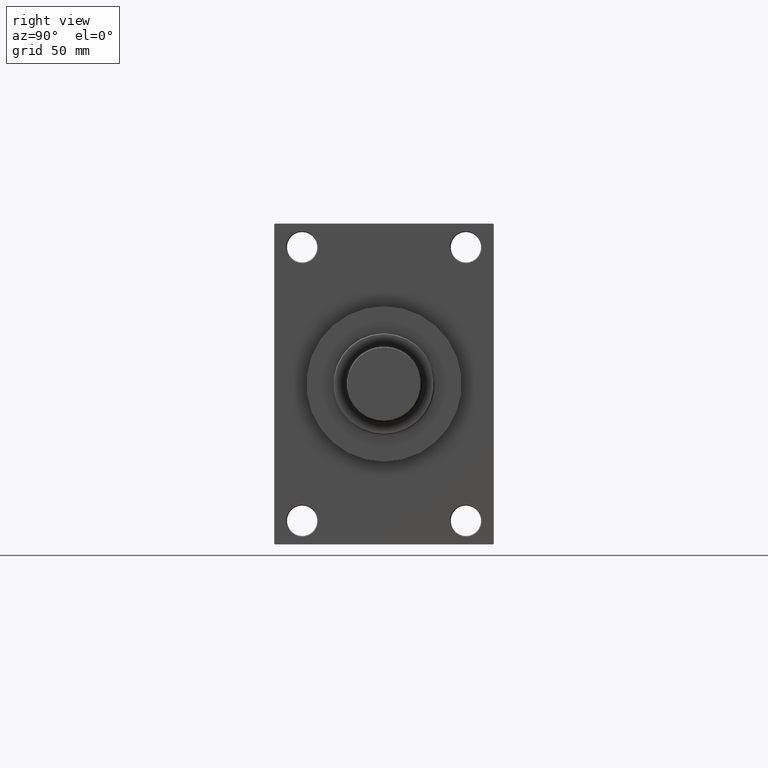
[diagram: clean part render]
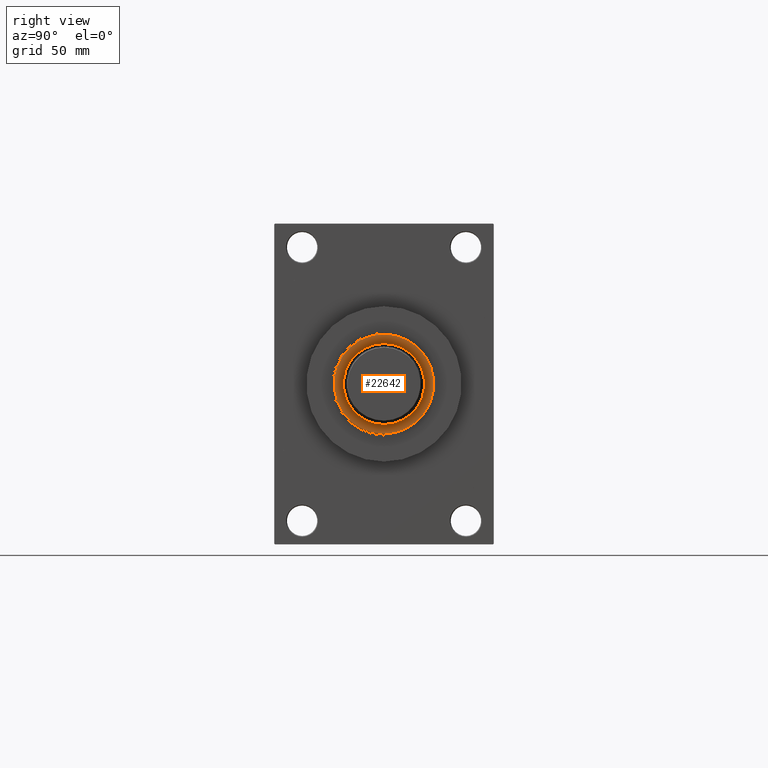
[diagram: same view with one face highlighted and labeled with its STEP entity id]
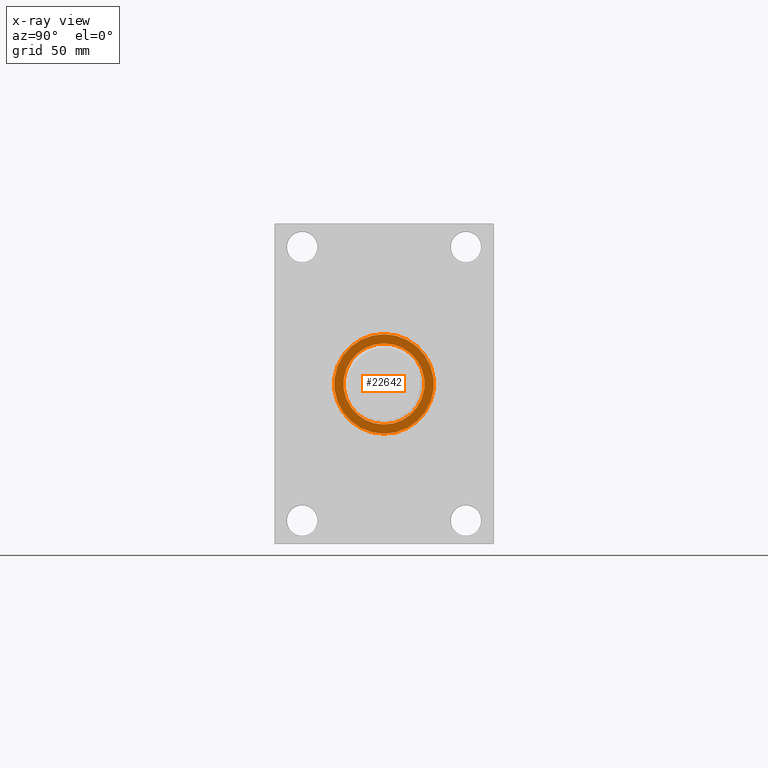
[diagram: x-ray of the same camera — body ghosted, the highlighted face saturated]
A machine part, right view. The second image highlights one B-rep face of the part: STEP entity #22642.
The next image is the same camera in x-ray: the body ghosted, the highlighted face saturated — about 0% of this face is hidden behind the body in this view.
In plain terms, the highlighted planar face has unit normal (1, 0, 0).
Its self-contained STEP definition (entity closure, byte-faithful):
#1291 = CARTESIAN_POINT ( 'NONE',  ( 0.000000000000000000, 0.000000000000000000, 52.25999999999999801 ) ) ;
#1650 = DIRECTION ( 'NONE',  ( 1.000000000000000000, 0.000000000000000000, -0.000000000000000000 ) ) ;
#3320 = AXIS2_PLACEMENT_3D ( 'NONE', #20366, #17201, #1650 ) ;
#7037 = DIRECTION ( 'NONE',  ( 1.000000000000000000, 0.000000000000000000, 0.000000000000000000 ) ) ;
#7342 = EDGE_LOOP ( 'NONE', ( #22119, #34394 ) ) ;
#9273 = DIRECTION ( 'NONE',  ( 0.000000000000000000, 0.000000000000000000, 1.000000000000000000 ) ) ;
#10120 = CARTESIAN_POINT ( 'NONE',  ( 24.00000000000000355, 0.000000000000000000, 52.25999999999999801 ) ) ;
#12003 = DIRECTION ( 'NONE',  ( 1.000000000000000000, 0.000000000000000000, 0.000000000000000000 ) ) ;
#12494 = DIRECTION ( 'NONE',  ( 0.000000000000000000, 0.000000000000000000, 1.000000000000000000 ) ) ;
#13114 = CARTESIAN_POINT ( 'NONE',  ( 0.000000000000000000, 0.000000000000000000, 52.25999999999999801 ) ) ;
#13301 = PLANE ( 'NONE',  #3320 ) ;
#14037 = CIRCLE ( 'NONE', #34259, 29.50000000000000000 ) ;
#15141 = CARTESIAN_POINT ( 'NONE',  ( -29.50000000000000000, 0.000000000000000000, 52.25999999999999801 ) ) ;
#15408 = CARTESIAN_POINT ( 'NONE',  ( 0.000000000000000000, 0.000000000000000000, 52.25999999999999801 ) ) ;
#15996 = VERTEX_POINT ( 'NONE', #15141 ) ;
#17201 = DIRECTION ( 'NONE',  ( 0.000000000000000000, 0.000000000000000000, 1.000000000000000000 ) ) ;
#17439 = FACE_OUTER_BOUND ( 'NONE', #40092, .T. ) ;
#17582 = CIRCLE ( 'NONE', #33127, 29.50000000000000000 ) ;
#18924 = EDGE_CURVE ( 'NONE', #15996, #46663, #14037, .T. ) ;
#20005 = DIRECTION ( 'NONE',  ( 1.000000000000000000, 0.000000000000000000, 0.000000000000000000 ) ) ;
#20366 = CARTESIAN_POINT ( 'NONE',  ( 0.000000000000000000, 0.000000000000000000, 52.25999999999999801 ) ) ;
#21249 = AXIS2_PLACEMENT_3D ( 'NONE', #15408, #12494, #12003 ) ;
#22119 = ORIENTED_EDGE ( 'NONE', *, *, #31052, .F. ) ;
#22642 = ADVANCED_FACE ( 'NONE', ( #31315, #17439 ), #13301, .T. ) ;
#23878 = CARTESIAN_POINT ( 'NONE',  ( 0.000000000000000000, 0.000000000000000000, 52.25999999999999801 ) ) ;
#24120 = DIRECTION ( 'NONE',  ( 1.000000000000000000, 0.000000000000000000, 0.000000000000000000 ) ) ;
#25834 = EDGE_CURVE ( 'NONE', #35136, #33893, #46128, .T. ) ;
#28949 = ORIENTED_EDGE ( 'NONE', *, *, #37195, .T. ) ;
#31052 = EDGE_CURVE ( 'NONE', #33893, #35136, #31465, .T. ) ;
#31315 = FACE_BOUND ( 'NONE', #7342, .T. ) ;
#31465 = CIRCLE ( 'NONE', #37687, 24.00000000000000355 ) ;
#32744 = ORIENTED_EDGE ( 'NONE', *, *, #18924, .T. ) ;
#33127 = AXIS2_PLACEMENT_3D ( 'NONE', #1291, #34611, #20005 ) ;
#33893 = VERTEX_POINT ( 'NONE', #10120 ) ;
#34259 = AXIS2_PLACEMENT_3D ( 'NONE', #23878, #9273, #24120 ) ;
#34394 = ORIENTED_EDGE ( 'NONE', *, *, #25834, .F. ) ;
#34611 = DIRECTION ( 'NONE',  ( 0.000000000000000000, 0.000000000000000000, 1.000000000000000000 ) ) ;
#35136 = VERTEX_POINT ( 'NONE', #44031 ) ;
#37195 = EDGE_CURVE ( 'NONE', #46663, #15996, #17582, .T. ) ;
#37687 = AXIS2_PLACEMENT_3D ( 'NONE', #13114, #46706, #7037 ) ;
#40092 = EDGE_LOOP ( 'NONE', ( #32744, #28949 ) ) ;
#42604 = CARTESIAN_POINT ( 'NONE',  ( 29.50000000000000000, 3.643324227463375391E-15, 52.25999999999999801 ) ) ;
#44031 = CARTESIAN_POINT ( 'NONE',  ( -24.00000000000000355, 2.939152317953648289E-15, 52.25999999999999801 ) ) ;
#46128 = CIRCLE ( 'NONE', #21249, 24.00000000000000355 ) ;
#46663 = VERTEX_POINT ( 'NONE', #42604 ) ;
#46706 = DIRECTION ( 'NONE',  ( 0.000000000000000000, 0.000000000000000000, 1.000000000000000000 ) ) ;